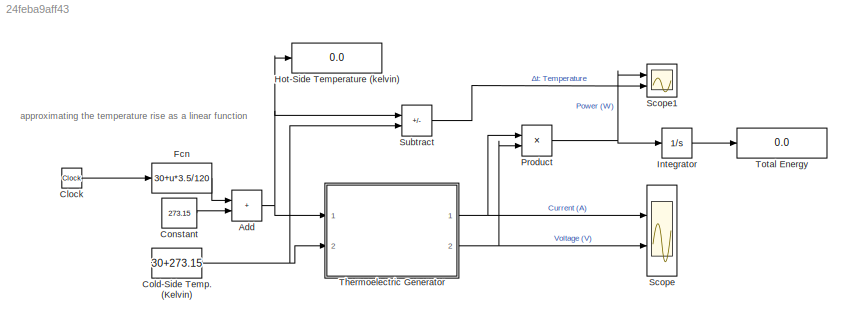
MODEL slx_24feba9aff43
KIND model
CONFIG AbsTol = auto
CONFIG EnableMultiTasking = off
CONFIG FixedStep = auto
CONFIG MaxStep = auto
CONFIG MinStep = auto
CONFIG RelTol = 1e-3
CONFIG SampleTimeConstraint = Unconstrained
CONFIG Solver = VariableStepAuto
CONFIG SolverName = VariableStepAuto
CONFIG StartTime = 0.0
CONFIG StopTime = 120
BLOCK [Sum] Add
  IconShape = rectangular
  Ports = [2, 1]
BLOCK [Clock] Clock
BLOCK [Constant] Cold-Side Temp. (Kelvin)
  Value = 30+273.15
BLOCK [Constant] Constant
  Value = 273.15
BLOCK [Fcn] Fcn
  Expr = 30+u*3.5/120
BLOCK [Display] Hot-Side Temperature (kelvin)
  Decimation = 1
  Ports = [1]
BLOCK [Integrator] Integrator
  Ports = [1, 1]
BLOCK [Product] Product
  Ports = [2, 1]
BLOCK [Scope] Scope
  Floating = off
  NumInputPorts = 2
  Ports = [2]
  ScopeSpecificationString = Simulink.scopes.TimeScopeBlockCfg('CurrentConfiguration', extmgr.ConfigurationSet(extmgr.Configuration('Core','General UI',true),extmgr.Configuration('Core','Source UI',true),extmgr.Configuration('Sources','WiredSimulink',true),extmgr.Configuration('Visuals','Time Domain',true,'SerializedDisplays',{struct('MinYLimReal','-0.00062','MaxYLimReal','0.00562','YLabelReal','','MinYLimMag','0.00000','MaxY...<+2019ch>
BLOCK [Scope] Scope1
  Floating = off
  NumInputPorts = 2
  Ports = [2]
  ScopeSpecificationString = Simulink.scopes.TimeScopeBlockCfg('CurrentConfiguration', extmgr.ConfigurationSet(extmgr.Configuration('Core','General UI',true),extmgr.Configuration('Core','Source UI',true),extmgr.Configuration('Sources','WiredSimulink',true,'DataLoggingVariableName','ScopeData1'),extmgr.Configuration('Visuals','Time Domain',true,'SerializedDisplays',{struct('MinYLimReal','-0.00025','MaxYLimReal','0.00225','YLab...<+2046ch>
BLOCK [Sum] Subtract
  IconShape = rectangular
  Inputs = +-
  Ports = [2, 1]
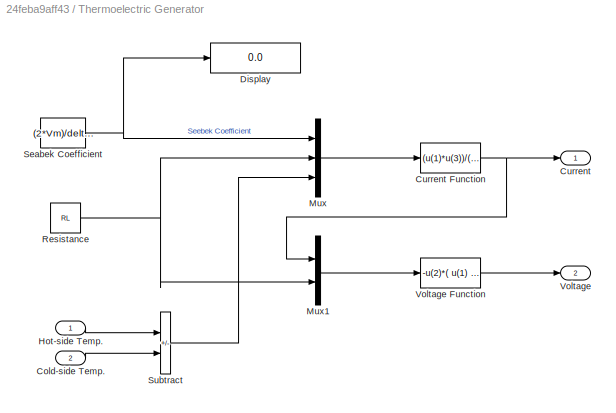
BLOCK [SubSystem] Thermoelectric Generator
  Ports = [2, 2]
  RequestExecContextInheritance = off
BLOCK [Inport] Thermoelectric Generator/Cold-side Temp.
  Port = 2
BLOCK [Outport] Thermoelectric Generator/Current
  VectorParamsAs1DForOutWhenUnconnected = off
BLOCK [Fcn] Thermoelectric Generator/Current Function
  Expr = (u(1)*u(3))/((1+m)*u(2)*1000)
BLOCK [Display] Thermoelectric Generator/Display
  Decimation = 1
  Ports = [1]
BLOCK [Inport] Thermoelectric Generator/Hot-side Temp.
BLOCK [Mux] Thermoelectric Generator/Mux
  DisplayOption = bar
  Inputs = 3
  Ports = [3, 1]
BLOCK [Mux] Thermoelectric Generator/Mux1
  DisplayOption = bar
  Inputs = 2
  Ports = [2, 1]
BLOCK [Constant] Thermoelectric Generator/Resistance
  Value = RL
BLOCK [Constant] Thermoelectric Generator/Seabek Coefficient
  Value = (2*Vm)/delta_T
BLOCK [Sum] Thermoelectric Generator/Subtract
  IconShape = rectangular
  Inputs = +-
  Ports = [2, 1]
BLOCK [Outport] Thermoelectric Generator/Voltage
  Port = 2
  VectorParamsAs1DForOutWhenUnconnected = off
BLOCK [Fcn] Thermoelectric Generator/Voltage Function
  Expr = -u(2)*( u(1) - ((2*Wm)/Vm) )
BLOCK [Display] Total Energy
  Decimation = 1
  Ports = [1]
ANNOTATION (root): approximating the temperature rise as a linear function
NET Add:1 -> Hot-Side Temperature (kelvin):1, Subtract:1, Thermoelectric Generator:1
LINE Clock:1 -> Fcn:1
NET Cold-Side Temp. (Kelvin):1 -> Subtract:2, Thermoelectric Generator:2
LINE Constant:1 -> Add:2
LINE Fcn:1 -> Add:1
LINE Integrator:1 -> Total Energy:1
NET Product:1 -> Integrator:1, Scope1:1
LINE Subtract:1 -> Scope1:2
LINE Thermoelectric Generator/Cold-side Temp.:1 -> Thermoelectric Generator/Subtract:2
NET Thermoelectric Generator/Current Function:1 -> Thermoelectric Generator/Current:1, Thermoelectric Generator/Mux1:1
LINE Thermoelectric Generator/Hot-side Temp.:1 -> Thermoelectric Generator/Subtract:1
LINE Thermoelectric Generator/Mux1:1 -> Thermoelectric Generator/Voltage Function:1
LINE Thermoelectric Generator/Mux:1 -> Thermoelectric Generator/Current Function:1
NET Thermoelectric Generator/Resistance:1 -> Thermoelectric Generator/Mux1:2, Thermoelectric Generator/Mux:2
NET Thermoelectric Generator/Seabek Coefficient:1 -> Thermoelectric Generator/Display:1, Thermoelectric Generator/Mux:1
LINE Thermoelectric Generator/Subtract:1 -> Thermoelectric Generator/Mux:3
LINE Thermoelectric Generator/Voltage Function:1 -> Thermoelectric Generator/Voltage:1
NET Thermoelectric Generator:1 -> Product:1, Scope:1
NET Thermoelectric Generator:2 -> Product:2, Scope:2
note: NET lines group one-source signal fan-out (src -> all destinations, sorted); 1:1 wires keep LINE
